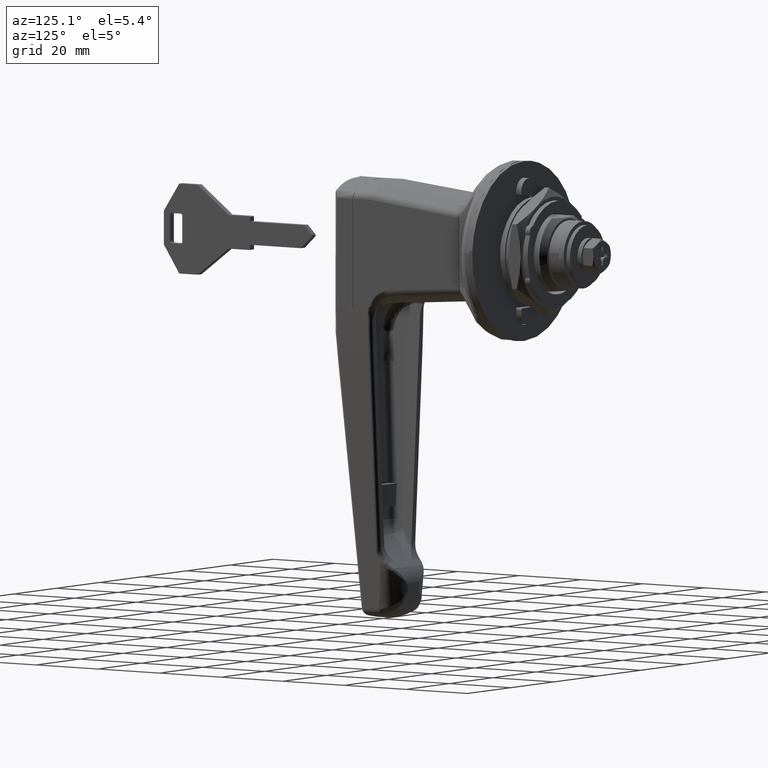
[diagram: clean part render]
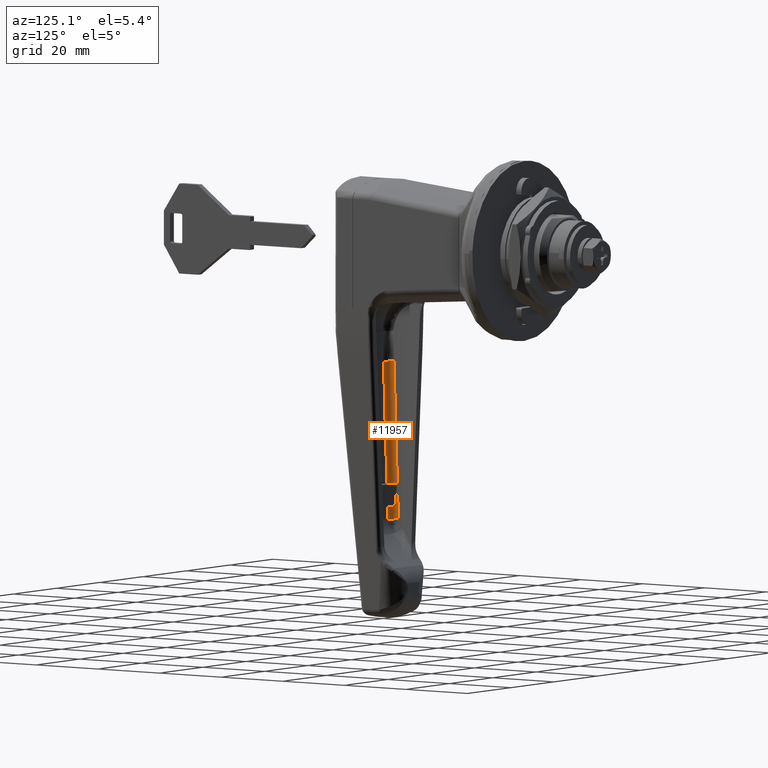
[diagram: same view with one face highlighted and labeled with its STEP entity id]
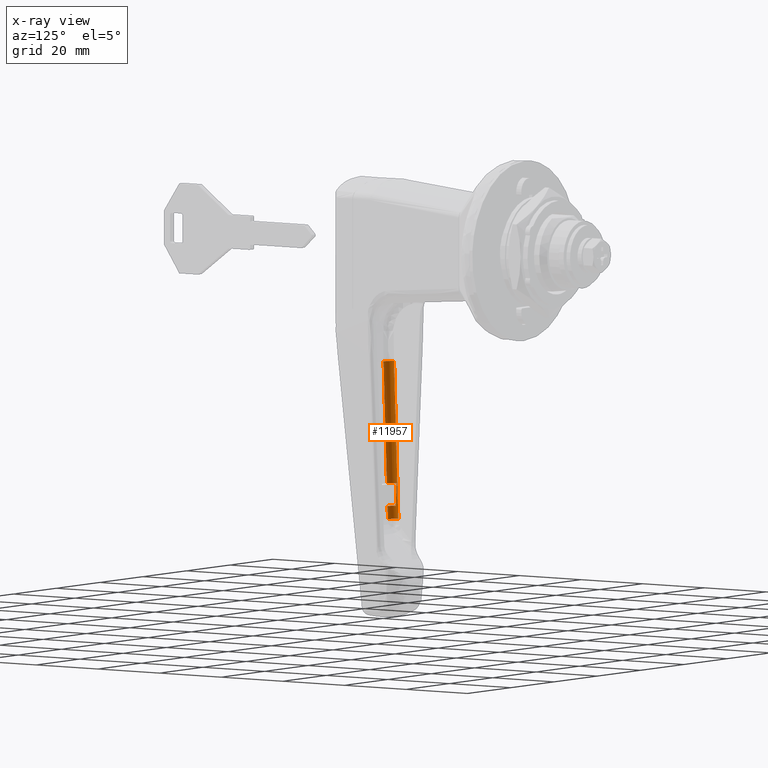
[diagram: x-ray of the same camera — body ghosted, the highlighted face saturated]
A machine part, auxiliary view. The second image highlights one B-rep face of the part: STEP entity #11957.
The next image is the same camera in x-ray: the body ghosted, the highlighted face saturated — about 0% of this face is hidden behind the body in this view.
In plain terms, the highlighted face is a freeform B-spline surface patch.
Its self-contained STEP definition (entity closure, byte-faithful):
#11162=CARTESIAN_POINT('',(-46.500000000000000,7.272750527865910,-65.0));
#11163=VERTEX_POINT('',#11162);
#11164=CARTESIAN_POINT('',(-46.500000000000000,6.770439864825840,-71.0));
#11165=VERTEX_POINT('',#11164);
#11166=CARTESIAN_POINT('',(-46.500000000000000,7.272750527865820,-65.0));
#11167=CARTESIAN_POINT('',(-46.500000000000000,7.045604187220478,-68.087131650993697));
#11168=CARTESIAN_POINT('',(-46.500000000000000,6.770439864825812,-70.999999999999986));
#11176=(BOUNDED_CURVE()B_SPLINE_CURVE(2,(#11166,#11167,#11168),.UNSPECIFIED.,.F.,.U.)CURVE()GEOMETRIC_REPRESENTATION_ITEM()QUASI_UNIFORM_CURVE()RATIONAL_B_SPLINE_CURVE((1.0,0.992426077608433,1.0))REPRESENTATION_ITEM(''));
#11177=EDGE_CURVE('',#11163,#11165,#11176,.T.);
#11214=CARTESIAN_POINT('',(-47.811574254526597,4.897027346124730,-71.0));
#11215=VERTEX_POINT('',#11214);
#11216=CARTESIAN_POINT('',(-46.500000000000021,6.770439864825811,-71.0));
#11217=CARTESIAN_POINT('',(-47.811574254526590,6.293616176627316,-71.0));
#11218=CARTESIAN_POINT('',(-47.811574254526590,4.897027346124724,-71.0));
#11226=(BOUNDED_CURVE()B_SPLINE_CURVE(2,(#11216,#11217,#11218),.UNSPECIFIED.,.F.,.U.)CURVE()GEOMETRIC_REPRESENTATION_ITEM()QUASI_UNIFORM_CURVE()RATIONAL_B_SPLINE_CURVE((1.0,0.820457366754405,1.0))REPRESENTATION_ITEM(''));
#11227=EDGE_CURVE('',#11165,#11215,#11226,.T.);
#11258=CARTESIAN_POINT('',(-48.291482940821602,5.289346666033780,-65.0));
#11259=VERTEX_POINT('',#11258);
#11260=CARTESIAN_POINT('',(-48.291482940821581,5.289346666033804,-65.0));
#11261=CARTESIAN_POINT('',(-48.291482940821581,7.089270237307610,-65.0));
#11262=CARTESIAN_POINT('',(-46.499999999999908,7.272750527865834,-65.0));
#11270=(BOUNDED_CURVE()B_SPLINE_CURVE(2,(#11260,#11261,#11262),.UNSPECIFIED.,.F.,.U.)CURVE()GEOMETRIC_REPRESENTATION_ITEM()QUASI_UNIFORM_CURVE()RATIONAL_B_SPLINE_CURVE((1.0,0.744012814601888,1.0))REPRESENTATION_ITEM(''));
#11271=EDGE_CURVE('',#11259,#11163,#11270,.T.);
#11859=CARTESIAN_POINT('',(-45.543004828951801,6.668008507093960,-74.408393773271911));
#11860=VERTEX_POINT('',#11859);
#11874=CARTESIAN_POINT('',(-47.536637797640402,4.672270247818130,-74.437359623665600));
#11875=VERTEX_POINT('',#11874);
#11876=CARTESIAN_POINT('',(-47.536637797640473,4.672270247818140,-74.437359623665557));
#11877=CARTESIAN_POINT('',(-47.526320252125437,6.657680066177520,-74.566353481993161));
#11878=CARTESIAN_POINT('',(-45.543004828951808,6.668008507093951,-74.408393773271868));
#11886=(BOUNDED_CURVE()B_SPLINE_CURVE(2,(#11876,#11877,#11878),.UNSPECIFIED.,.F.,.U.)CURVE()GEOMETRIC_REPRESENTATION_ITEM()QUASI_UNIFORM_CURVE()RATIONAL_B_SPLINE_CURVE((1.0,0.708943640484355,1.0))REPRESENTATION_ITEM(''));
#11887=EDGE_CURVE('',#11875,#11860,#11886,.T.);
#11905=CARTESIAN_POINT('',(-47.452616147350980,4.541498949080607,-75.475478960218368));
#11906=CARTESIAN_POINT('',(-50.956049174897373,7.405511420547189,-31.674233503375170));
#11907=CARTESIAN_POINT('',(-47.510088389691155,6.738264009997642,-75.623714760721498));
#11908=CARTESIAN_POINT('',(-51.013521417237541,9.602276481464212,-31.822469303878318));
#11909=CARTESIAN_POINT('',(-45.319955195547735,6.595681170079331,-75.439214436254815));
#11910=CARTESIAN_POINT('',(-48.823388223094135,9.459693641545909,-31.637968979411671));
#11918=(BOUNDED_SURFACE()B_SPLINE_SURFACE(1,2,((#11905,#11907,#11909),(#11906,#11908,#11910)),.UNSPECIFIED.,.F.,.F.,.U.)B_SPLINE_SURFACE_WITH_KNOTS((2,2),(3,3),(0.0,44.034369689889360),(0.0,3.541670881868701),.UNSPECIFIED.)GEOMETRIC_REPRESENTATION_ITEM()RATIONAL_B_SPLINE_SURFACE(((1.0,0.671001117000928,0.996280127907229),(1.0,0.671001117000928,0.996280127907229)))REPRESENTATION_ITEM('')SURFACE());
#11919=ORIENTED_EDGE('',*,*,#11271,.T.);
#11920=ORIENTED_EDGE('',*,*,#11177,.T.);
#11921=ORIENTED_EDGE('',*,*,#11227,.T.);
#11922=CARTESIAN_POINT('',(-47.811574254526597,4.897027346124730,-71.0));
#11923=CARTESIAN_POINT('',(-47.536637797640402,4.672270247818130,-74.437359623665600));
#11924=QUASI_UNIFORM_CURVE('',1,(#11922,#11923),.UNSPECIFIED.,.F.,.U.);
#11925=EDGE_CURVE('',#11215,#11875,#11924,.T.);
#11926=ORIENTED_EDGE('',*,*,#11925,.T.);
#11927=ORIENTED_EDGE('',*,*,#11887,.T.);
#11928=CARTESIAN_POINT('',(-48.877622741752099,9.394016808543810,-32.717737772722302));
#11929=VERTEX_POINT('',#11928);
#11930=CARTESIAN_POINT('',(-45.543004828951801,6.668008507093960,-74.408393773271911));
#11931=CARTESIAN_POINT('',(-48.877622741752099,9.394016808543810,-32.717737772722302));
#11932=QUASI_UNIFORM_CURVE('',1,(#11930,#11931),.UNSPECIFIED.,.F.,.U.);
#11933=EDGE_CURVE('',#11860,#11929,#11932,.T.);
#11934=ORIENTED_EDGE('',*,*,#11933,.T.);
#11935=CARTESIAN_POINT('',(-50.871255789139212,7.398278548835680,-32.746703629383902));
#11936=VERTEX_POINT('',#11935);
#11937=CARTESIAN_POINT('',(-50.871255789139212,7.398278548835680,-32.746703629383902));
#11938=CARTESIAN_POINT('',(-50.860938165878579,9.383688368052898,-32.875697474935457));
#11939=CARTESIAN_POINT('',(-48.877622741752099,9.394016808543812,-32.717737772722337));
#11947=(BOUNDED_CURVE()B_SPLINE_CURVE(2,(#11937,#11938,#11939),.UNSPECIFIED.,.F.,.U.)CURVE()GEOMETRIC_REPRESENTATION_ITEM()QUASI_UNIFORM_CURVE()RATIONAL_B_SPLINE_CURVE((1.0,0.708943640407984,1.0))REPRESENTATION_ITEM(''));
#11948=EDGE_CURVE('',#11936,#11929,#11947,.T.);
#11949=ORIENTED_EDGE('',*,*,#11948,.F.);
#11950=CARTESIAN_POINT('',(-50.871255789139212,7.398278548835680,-32.746703629383902));
#11951=CARTESIAN_POINT('',(-48.291482940821602,5.289346666033780,-65.0));
#11952=QUASI_UNIFORM_CURVE('',1,(#11950,#11951),.UNSPECIFIED.,.F.,.U.);
#11953=EDGE_CURVE('',#11936,#11259,#11952,.T.);
#11954=ORIENTED_EDGE('',*,*,#11953,.T.);
#11955=EDGE_LOOP('',(#11919,#11920,#11921,#11926,#11927,#11934,#11949,#11954));
#11956=FACE_OUTER_BOUND('',#11955,.T.);
#11957=ADVANCED_FACE('',(#11956),#11918,.F.);